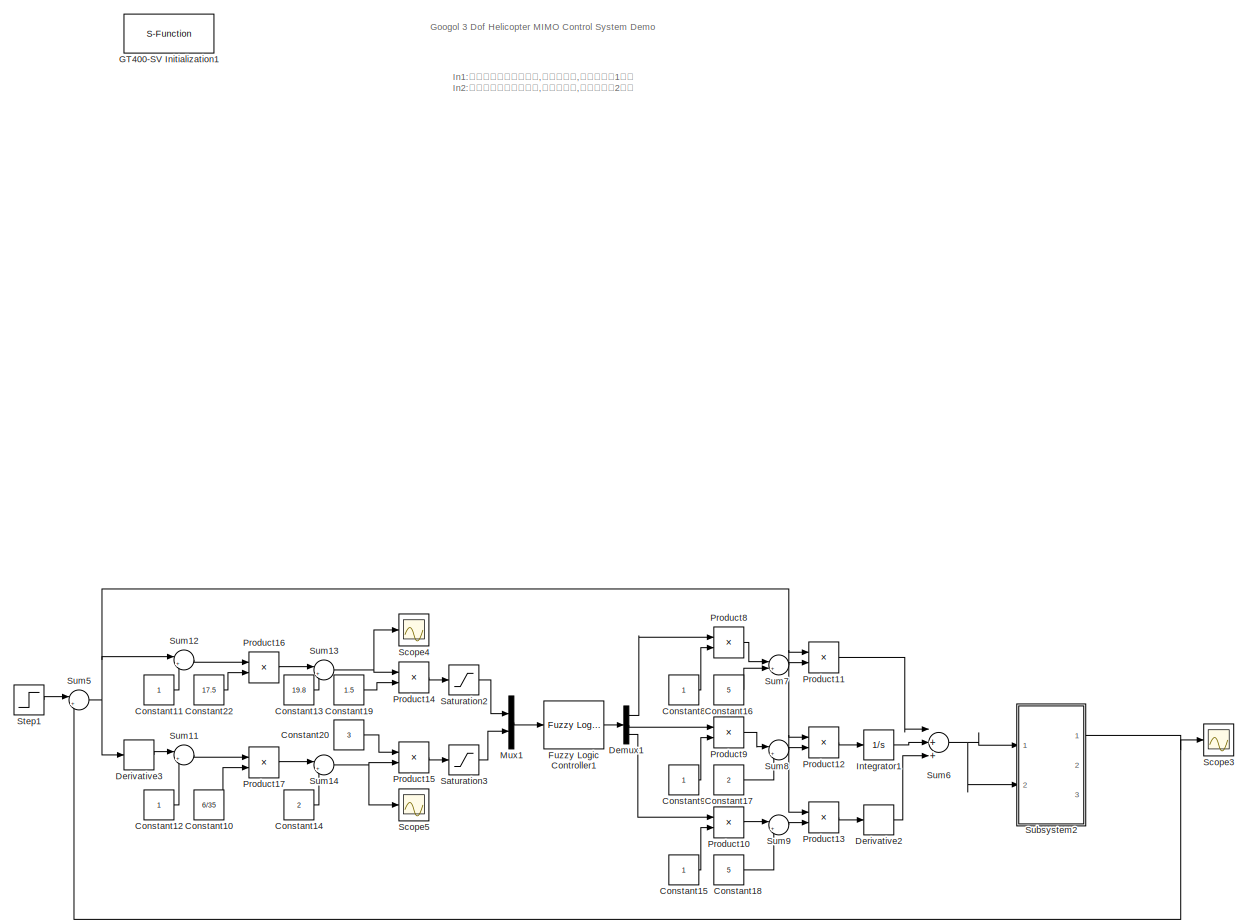
[diagram: root canvas - part 1/1, most of the canvas]
MODEL slx_7bb61a2491fc
KIND model
BLOCK [Constant] Constant10
  Value = 6/35
BLOCK [Constant] Constant11
BLOCK [Constant] Constant12
BLOCK [Constant] Constant13
  Value = 19.8
BLOCK [Constant] Constant14
  Value = 2
BLOCK [Constant] Constant15
BLOCK [Constant] Constant16
  Value = 5
BLOCK [Constant] Constant17
  Value = 2
BLOCK [Constant] Constant18
  Value = 5
BLOCK [Constant] Constant19
  Value = 1.5
BLOCK [Constant] Constant20
  Value = 3
BLOCK [Constant] Constant22
  Value = 17.5
BLOCK [Constant] Constant8
BLOCK [Constant] Constant9
BLOCK [Demux] Demux1
  DisplayOption = bar
  Outputs = 3
  Ports = [1, 3]
BLOCK [Derivative] Derivative2
BLOCK [Derivative] Derivative3
BLOCK [Reference] Fuzzy Logic  Controller1  REF=fuzblock/Fuzzy Logic   (lib defined in mdl_858b3b3e7478)
Controller
  Ports = [1, 1]
  SourceBlock = fuzblock/Fuzzy Logic \nController
  SourceType = FIS
  fis = [Test]
BLOCK [S-Function] GT400-SV Initialization1
  EnableBusSupport = off
  FunctionName = Initialize
  Parameters = openloop
  Ports = []
  Priority = 0
BLOCK [Integrator] Integrator1
  Ports = [1, 1]
BLOCK [Mux] Mux1
  DisplayOption = bar
  Inputs = 2
  Ports = [2, 1]
BLOCK [Product] Product10
  InputSameDT = off
  OutDataTypeStr = Inherit: Inherit via internal rule
  Ports = [2, 1]
  SaturateOnIntegerOverflow = off
BLOCK [Product] Product11
  InputSameDT = off
  OutDataTypeStr = Inherit: Inherit via internal rule
  Ports = [2, 1]
  SaturateOnIntegerOverflow = off
BLOCK [Product] Product12
  InputSameDT = off
  OutDataTypeStr = Inherit: Inherit via internal rule
  Ports = [2, 1]
  SaturateOnIntegerOverflow = off
BLOCK [Product] Product13
  InputSameDT = off
  OutDataTypeStr = Inherit: Inherit via internal rule
  Ports = [2, 1]
  SaturateOnIntegerOverflow = off
BLOCK [Product] Product14
  InputSameDT = off
  OutDataTypeStr = Inherit: Inherit via internal rule
  Ports = [2, 1]
  SaturateOnIntegerOverflow = off
BLOCK [Product] Product15
  InputSameDT = off
  OutDataTypeStr = Inherit: Inherit via internal rule
  Ports = [2, 1]
  SaturateOnIntegerOverflow = off
BLOCK [Product] Product16
  InputSameDT = off
  OutDataTypeStr = Inherit: Inherit via internal rule
  Ports = [2, 1]
  SaturateOnIntegerOverflow = off
BLOCK [Product] Product17
  InputSameDT = off
  OutDataTypeStr = Inherit: Inherit via internal rule
  Ports = [2, 1]
  SaturateOnIntegerOverflow = off
BLOCK [Product] Product8
  InputSameDT = off
  OutDataTypeStr = Inherit: Inherit via internal rule
  Ports = [2, 1]
  SaturateOnIntegerOverflow = off
BLOCK [Product] Product9
  InputSameDT = off
  OutDataTypeStr = Inherit: Inherit via internal rule
  Ports = [2, 1]
  SaturateOnIntegerOverflow = off
BLOCK [Saturate] Saturation2
  InputPortMap = u0
  Ports = [1, 1]
BLOCK [Saturate] Saturation3
  InputPortMap = u0
  Ports = [1, 1]
BLOCK [Scope] Scope3
  DataFormat = StructureWithTime
  Floating = off
  NumInputPorts = 1
  Ports = [1]
  SampleTime = 0
  SaveName = realFUZZYoutput
  SaveToWorkspace = on
  ShowLegends = off
  YMax = 0.30125
  YMin = 0.29825
BLOCK [Scope] Scope4
  DataFormat = StructureWithTime
  Floating = off
  NumInputPorts = 1
  Ports = [1]
  SampleTime = 0
  SaveName = FUZZYinput1
  SaveToWorkspace = on
  ShowLegends = off
BLOCK [Scope] Scope5
  DataFormat = StructureWithTime
  Floating = off
  NumInputPorts = 1
  Ports = [1]
  SampleTime = 0
  SaveName = FUZZYinput2
  SaveToWorkspace = on
  ShowLegends = off
BLOCK [Step] Step1
  After = 0.3
  SampleTime = 0
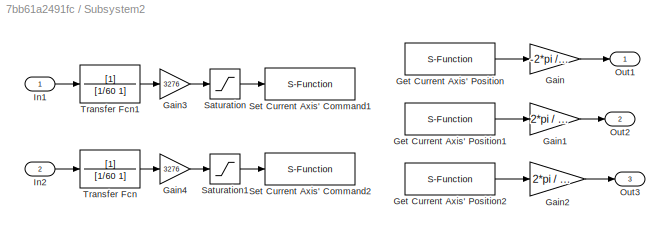
BLOCK [SubSystem] Subsystem2
  FunctionWithSeparateData = off
  MaskHideContents = off
  MinAlgLoopOccurrences = off
  Opaque = off
  Ports = [2, 3]
  PropExecContextOutsideSubsystem = off
  RTWSystemCode = Auto
  RequestExecContextInheritance = off
BLOCK [Gain] Subsystem2/Gain
  Gain = -2*pi / 2400
BLOCK [Gain] Subsystem2/Gain1
  Gain = 2*pi / 2400
BLOCK [Gain] Subsystem2/Gain2
  Gain = 2*pi / 2400
BLOCK [Gain] Subsystem2/Gain3
  Gain = 3276
  OutDataTypeStr = Inherit: Inherit via internal rule
  ParamDataTypeStr = Inherit: Inherit via internal rule
  SaturateOnIntegerOverflow = off
BLOCK [Gain] Subsystem2/Gain4
  Gain = 3276
  OutDataTypeStr = Inherit: Inherit via internal rule
  ParamDataTypeStr = Inherit: Inherit via internal rule
  SaturateOnIntegerOverflow = off
BLOCK [S-Function] Subsystem2/Get Current Axis' Position
  EnableBusSupport = off
  FunctionName = GetPos
  Parameters = axis
  Ports = [0, 1]
  Priority = 1
BLOCK [S-Function] Subsystem2/Get Current Axis' Position1
  EnableBusSupport = off
  FunctionName = GetPos
  Parameters = axis
  Ports = [0, 1]
  Priority = 1
BLOCK [S-Function] Subsystem2/Get Current Axis' Position2
  EnableBusSupport = off
  FunctionName = GetPos
  Parameters = axis
  Ports = [0, 1]
  Priority = 1
BLOCK [Inport] Subsystem2/In1
  IconDisplay = Port number
BLOCK [Inport] Subsystem2/In2
  IconDisplay = Port number
  Port = 2
BLOCK [Outport] Subsystem2/Out1
  IconDisplay = Port number
BLOCK [Outport] Subsystem2/Out2
  IconDisplay = Port number
  Port = 2
BLOCK [Outport] Subsystem2/Out3
  IconDisplay = Port number
  Port = 3
BLOCK [Saturate] Subsystem2/Saturation
  InputPortMap = u0
  LowerLimit = 0
  Ports = [1, 1]
  UpperLimit = 9000
BLOCK [Saturate] Subsystem2/Saturation1
  InputPortMap = u0
  LowerLimit = 0
  Ports = [1, 1]
  UpperLimit = 9000
BLOCK [S-Function] Subsystem2/Set Current Axis' Command1
  EnableBusSupport = off
  FunctionName = SetMtrCmd
  Parameters = axis
  Ports = [1]
  Priority = 1
BLOCK [S-Function] Subsystem2/Set Current Axis' Command2
  EnableBusSupport = off
  FunctionName = SetMtrCmd
  Parameters = axis
  Ports = [1]
  Priority = 1
BLOCK [TransferFcn] Subsystem2/Transfer Fcn
  Denominator = [1/60 1]
BLOCK [TransferFcn] Subsystem2/Transfer Fcn1
  Denominator = [1/60 1]
BLOCK [Sum] Sum11
  IconShape = round
  InputSameDT = off
  Inputs = |+-
  OutDataTypeStr = Inherit: Inherit via internal rule
  Ports = [2, 1]
  SaturateOnIntegerOverflow = off
BLOCK [Sum] Sum12
  IconShape = round
  InputSameDT = off
  Inputs = |++
  OutDataTypeStr = Inherit: Inherit via internal rule
  Ports = [2, 1]
  SaturateOnIntegerOverflow = off
BLOCK [Sum] Sum13
  IconShape = round
  InputSameDT = off
  Inputs = |+-
  OutDataTypeStr = Inherit: Inherit via internal rule
  Ports = [2, 1]
  SaturateOnIntegerOverflow = off
BLOCK [Sum] Sum14
  IconShape = round
  InputSameDT = off
  Inputs = |+-
  OutDataTypeStr = Inherit: Inherit via internal rule
  Ports = [2, 1]
  SaturateOnIntegerOverflow = off
BLOCK [Sum] Sum5
  IconShape = round
  InputSameDT = off
  Inputs = |+-
  OutDataTypeStr = Inherit: Inherit via internal rule
  Ports = [2, 1]
  SaturateOnIntegerOverflow = off
BLOCK [Sum] Sum6
  InputSameDT = off
  Inputs = |+++
  OutDataTypeStr = Inherit: Inherit via internal rule
  Ports = [3, 1]
  SaturateOnIntegerOverflow = off
BLOCK [Sum] Sum7
  IconShape = round
  InputSameDT = off
  Inputs = |++
  OutDataTypeStr = Inherit: Inherit via internal rule
  Ports = [2, 1]
  SaturateOnIntegerOverflow = off
BLOCK [Sum] Sum8
  IconShape = round
  InputSameDT = off
  Inputs = |++
  OutDataTypeStr = Inherit: Inherit via internal rule
  Ports = [2, 1]
  SaturateOnIntegerOverflow = off
BLOCK [Sum] Sum9
  IconShape = round
  InputSameDT = off
  Inputs = |++
  OutDataTypeStr = Inherit: Inherit via internal rule
  Ports = [2, 1]
  SaturateOnIntegerOverflow = off
ANNOTATION (root): Googol 3 Dof Helicopter MIMO Control System Demo
ANNOTATION (root): In1:从机尾往螺旋桨方向看,右侧螺旋桨,对应手册的1号桨 In2:从机尾往螺旋桨方向看,左侧螺旋桨,对应手册的2号桨
LINE Constant10:1 -> Product17:2
LINE Constant11:1 -> Sum12:2
LINE Constant12:1 -> Sum11:2
LINE Constant13:1 -> Sum13:2
LINE Constant14:1 -> Sum14:2
LINE Constant15:1 -> Product10:2
LINE Constant16:1 -> Sum7:2
LINE Constant17:1 -> Sum8:2
LINE Constant18:1 -> Sum9:2
LINE Constant19:1 -> Product14:2
LINE Constant20:1 -> Product15:1
LINE Constant22:1 -> Product16:2
LINE Constant8:1 -> Product8:2
LINE Constant9:1 -> Product9:2
LINE Demux1:1 -> Product8:1
LINE Demux1:2 -> Product9:1
LINE Demux1:3 -> Product10:1
LINE Derivative2:1 -> Sum6:3
LINE Derivative3:1 -> Sum11:1
LINE Fuzzy Logic  Controller1:1 -> Demux1:1
LINE Integrator1:1 -> Sum6:2
LINE Mux1:1 -> Fuzzy Logic  Controller1:1
LINE Product10:1 -> Sum9:1
LINE Product11:1 -> Sum6:1
LINE Product12:1 -> Integrator1:1
LINE Product13:1 -> Derivative2:1
LINE Product14:1 -> Saturation2:1
LINE Product15:1 -> Saturation3:1
LINE Product16:1 -> Sum13:1
LINE Product17:1 -> Sum14:1
LINE Product8:1 -> Sum7:1
LINE Product9:1 -> Sum8:1
LINE Saturation2:1 -> Mux1:1
LINE Saturation3:1 -> Mux1:2
LINE Step1:1 -> Sum5:1
LINE Subsystem2/Gain1:1 -> Subsystem2/Out2:1
LINE Subsystem2/Gain2:1 -> Subsystem2/Out3:1
LINE Subsystem2/Gain3:1 -> Subsystem2/Saturation:1
LINE Subsystem2/Gain4:1 -> Subsystem2/Saturation1:1
LINE Subsystem2/Gain:1 -> Subsystem2/Out1:1
LINE Subsystem2/Get Current Axis' Position1:1 -> Subsystem2/Gain1:1
LINE Subsystem2/Get Current Axis' Position2:1 -> Subsystem2/Gain2:1
LINE Subsystem2/Get Current Axis' Position:1 -> Subsystem2/Gain:1
LINE Subsystem2/In1:1 -> Subsystem2/Transfer Fcn1:1
LINE Subsystem2/In2:1 -> Subsystem2/Transfer Fcn:1
LINE Subsystem2/Saturation1:1 -> Subsystem2/Set Current Axis' Command2:1
LINE Subsystem2/Saturation:1 -> Subsystem2/Set Current Axis' Command1:1
LINE Subsystem2/Transfer Fcn1:1 -> Subsystem2/Gain3:1
LINE Subsystem2/Transfer Fcn:1 -> Subsystem2/Gain4:1
NET Subsystem2:1 -> Scope3:1, Sum5:2
LINE Sum11:1 -> Product17:1
LINE Sum12:1 -> Product16:1
NET Sum13:1 -> Product14:1, Scope4:1
NET Sum14:1 -> Product15:2, Scope5:1
NET Sum5:1 -> Derivative3:1, Product11:1, Product12:1, Product13:1, Sum12:1
NET Sum6:1 -> Subsystem2:1, Subsystem2:2
LINE Sum7:1 -> Product11:2
LINE Sum8:1 -> Product12:2
LINE Sum9:1 -> Product13:2
note: NET lines group one-source signal fan-out (src -> all destinations, sorted); 1:1 wires keep LINE
